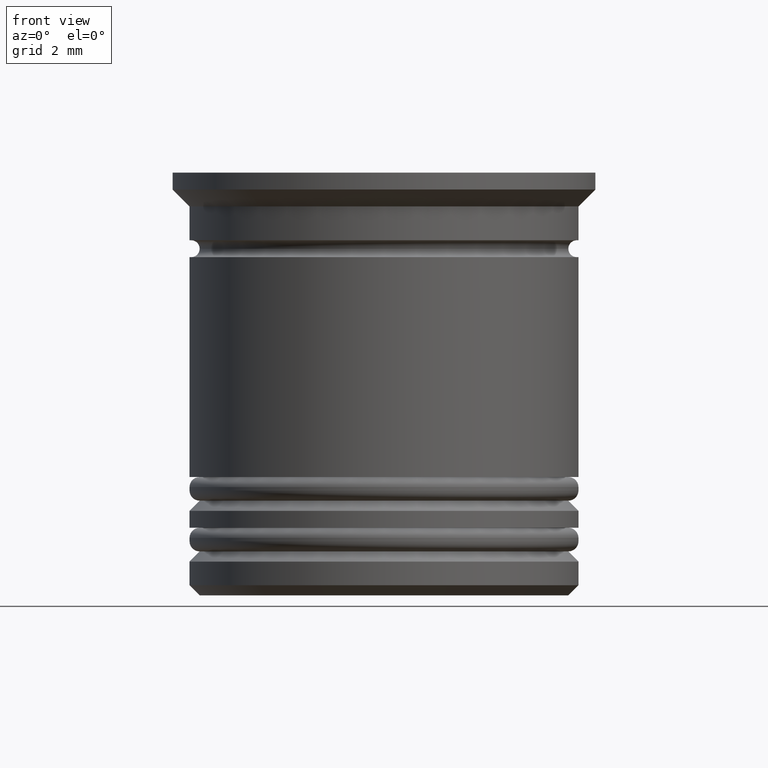
[diagram: clean part render]
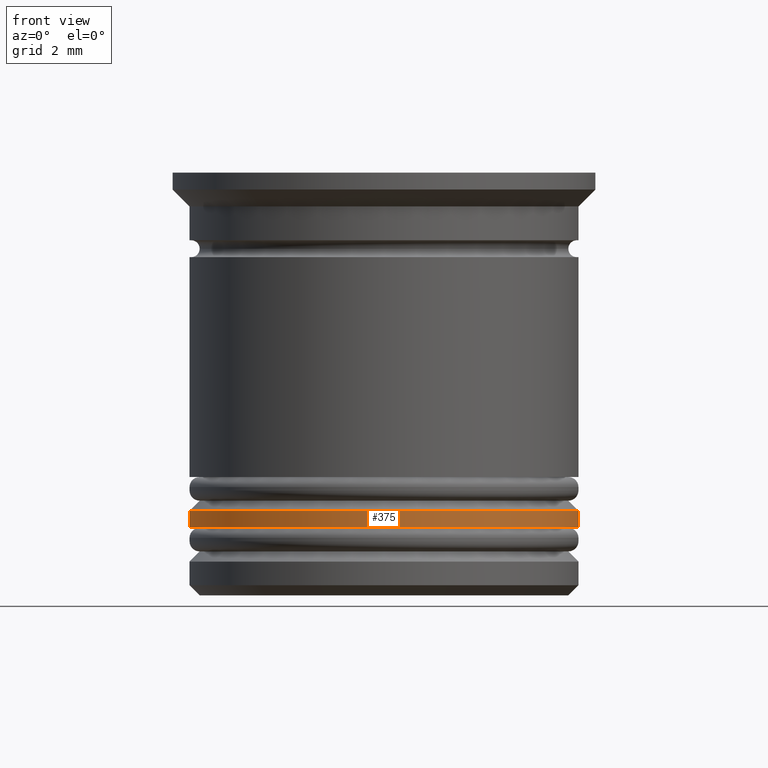
[diagram: same view with one face highlighted and labeled with its STEP entity id]
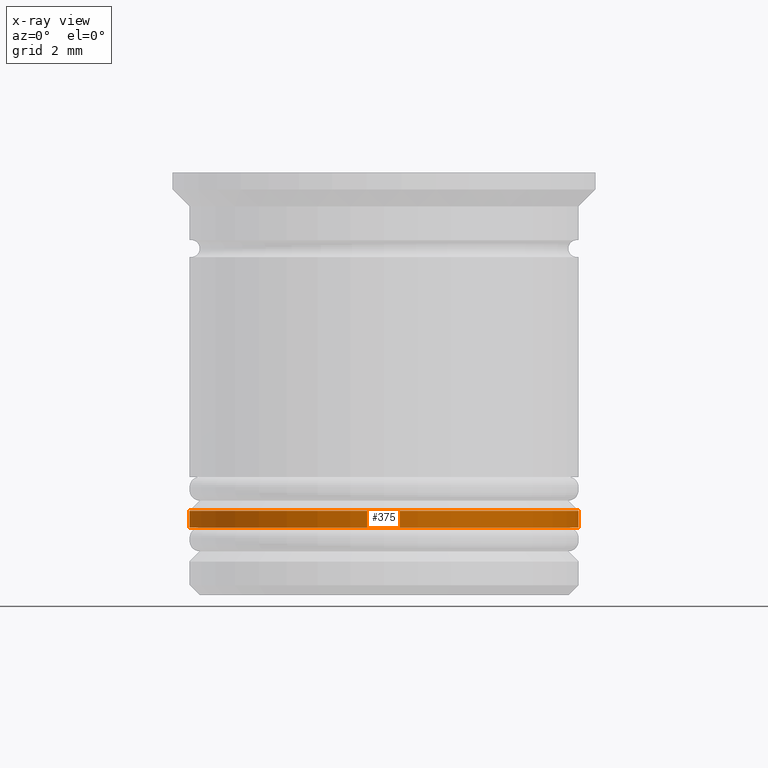
[diagram: x-ray of the same camera — body ghosted, the highlighted face saturated]
A machine part, front view. The second image highlights one B-rep face of the part: STEP entity #375.
The next image is the same camera in x-ray: the body ghosted, the highlighted face saturated — about 0% of this face is hidden behind the body in this view.
In plain terms, the highlighted cylindrical surface (partial cylindrical patch) has radius 5.75 mm, axis along (-0, -0, 1).
Its self-contained STEP definition (entity closure, byte-faithful):
#1 = ORIENTED_EDGE ( 'NONE', *, *, #908, .T. ) ;
#100 = DIRECTION ( 'NONE',  ( 1.000000000000000000, 0.000000000000000000, 0.000000000000000000 ) ) ;
#103 = CIRCLE ( 'NONE', #481, 5.750000000000001776 ) ;
#220 = AXIS2_PLACEMENT_3D ( 'NONE', #555, #1764, #100 ) ;
#276 = CARTESIAN_POINT ( 'NONE',  ( -5.750000000000001776, 7.041719095097282852E-16, -10.50000000000000178 ) ) ;
#352 = DIRECTION ( 'NONE',  ( 0.000000000000000000, 0.000000000000000000, -1.000000000000000000 ) ) ;
#356 = VECTOR ( 'NONE', #1380, 1000.000000000000000 ) ;
#366 = ORIENTED_EDGE ( 'NONE', *, *, #552, .T. ) ;
#375 = ADVANCED_FACE ( 'NONE', ( #550 ), #616, .T. ) ;
#477 = AXIS2_PLACEMENT_3D ( 'NONE', #783, #1802, #1789 ) ;
#481 = AXIS2_PLACEMENT_3D ( 'NONE', #503, #352, #946 ) ;
#503 = CARTESIAN_POINT ( 'NONE',  ( 0.000000000000000000, 0.000000000000000000, -10.00000000000000533 ) ) ;
#550 = FACE_OUTER_BOUND ( 'NONE', #1519, .T. ) ;
#552 = EDGE_CURVE ( 'NONE', #1878, #1570, #103, .T. ) ;
#555 = CARTESIAN_POINT ( 'NONE',  ( 0.000000000000000000, 0.000000000000000000, -10.50000000000000178 ) ) ;
#616 = CYLINDRICAL_SURFACE ( 'NONE', #477, 5.750000000000001776 ) ;
#751 = LINE ( 'NONE', #1659, #1064 ) ;
#768 = CARTESIAN_POINT ( 'NONE',  ( 5.750000000000001776, 0.000000000000000000, -10.00000000000000533 ) ) ;
#771 = DIRECTION ( 'NONE',  ( -0.000000000000000000, -0.000000000000000000, 1.000000000000000000 ) ) ;
#783 = CARTESIAN_POINT ( 'NONE',  ( 0.000000000000000000, 0.000000000000000000, 0.000000000000000000 ) ) ;
#811 = EDGE_CURVE ( 'NONE', #1405, #983, #1683, .T. ) ;
#908 = EDGE_CURVE ( 'NONE', #983, #1878, #751, .T. ) ;
#912 = LINE ( 'NONE', #1516, #356 ) ;
#946 = DIRECTION ( 'NONE',  ( -1.000000000000000000, 0.000000000000000000, 0.000000000000000000 ) ) ;
#983 = VERTEX_POINT ( 'NONE', #1510 ) ;
#1064 = VECTOR ( 'NONE', #771, 1000.000000000000000 ) ;
#1210 = ORIENTED_EDGE ( 'NONE', *, *, #1799, .F. ) ;
#1247 = CARTESIAN_POINT ( 'NONE',  ( -5.750000000000001776, 7.041719095097282852E-16, -10.00000000000000533 ) ) ;
#1380 = DIRECTION ( 'NONE',  ( -0.000000000000000000, -0.000000000000000000, 1.000000000000000000 ) ) ;
#1405 = VERTEX_POINT ( 'NONE', #276 ) ;
#1510 = CARTESIAN_POINT ( 'NONE',  ( 5.750000000000001776, 0.000000000000000000, -10.50000000000000178 ) ) ;
#1516 = CARTESIAN_POINT ( 'NONE',  ( -5.750000000000001776, 7.041719095097282852E-16, 0.000000000000000000 ) ) ;
#1519 = EDGE_LOOP ( 'NONE', ( #1210, #1605, #1, #366 ) ) ;
#1570 = VERTEX_POINT ( 'NONE', #1247 ) ;
#1605 = ORIENTED_EDGE ( 'NONE', *, *, #811, .T. ) ;
#1659 = CARTESIAN_POINT ( 'NONE',  ( 5.750000000000001776, 0.000000000000000000, 0.000000000000000000 ) ) ;
#1683 = CIRCLE ( 'NONE', #220, 5.750000000000001776 ) ;
#1764 = DIRECTION ( 'NONE',  ( -0.000000000000000000, -0.000000000000000000, 1.000000000000000000 ) ) ;
#1789 = DIRECTION ( 'NONE',  ( 1.000000000000000000, 0.000000000000000000, 0.000000000000000000 ) ) ;
#1799 = EDGE_CURVE ( 'NONE', #1405, #1570, #912, .T. ) ;
#1802 = DIRECTION ( 'NONE',  ( -0.000000000000000000, -0.000000000000000000, 1.000000000000000000 ) ) ;
#1878 = VERTEX_POINT ( 'NONE', #768 ) ;